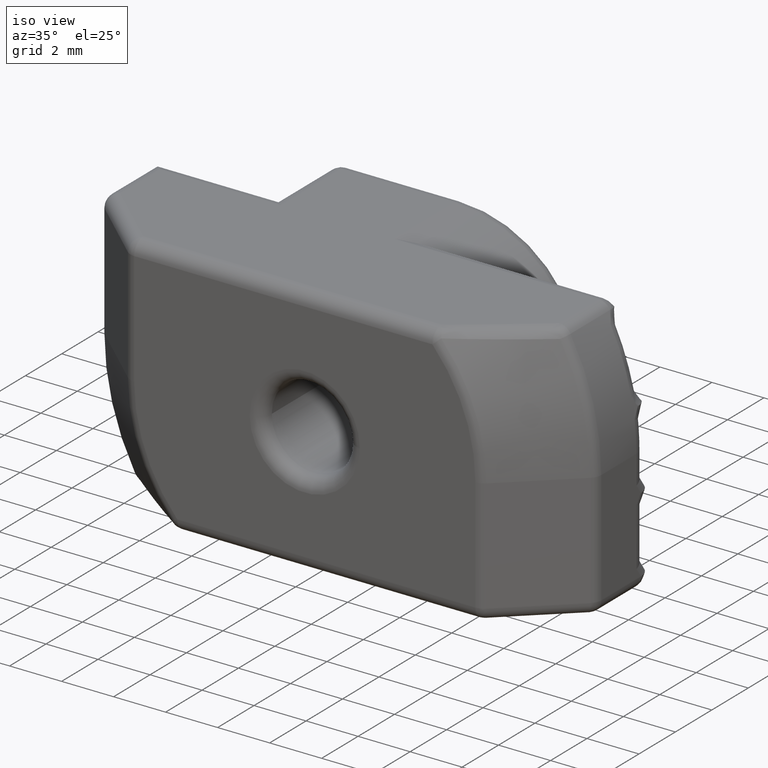
[diagram: clean part render]
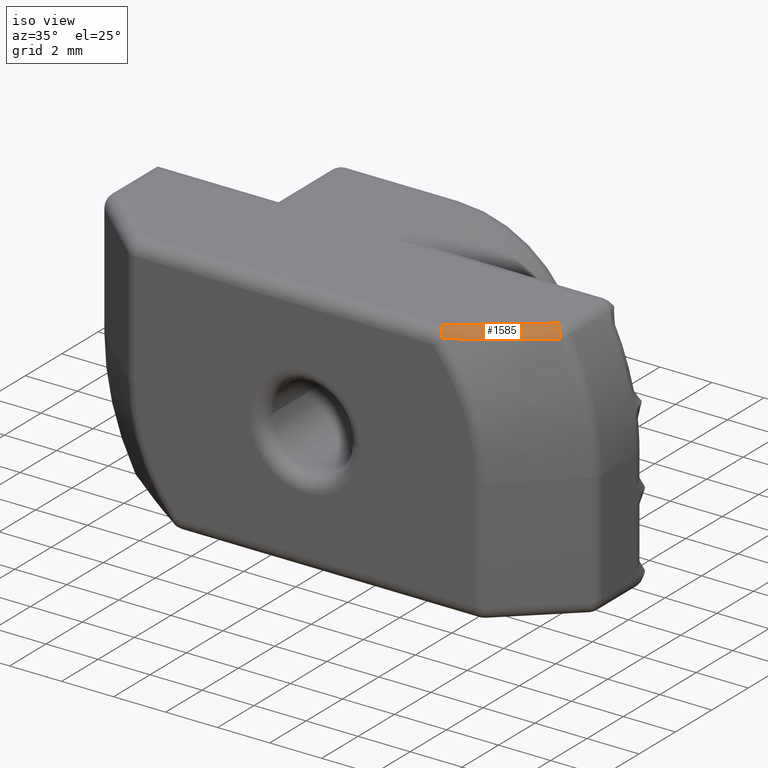
[diagram: same view with one face highlighted and labeled with its STEP entity id]
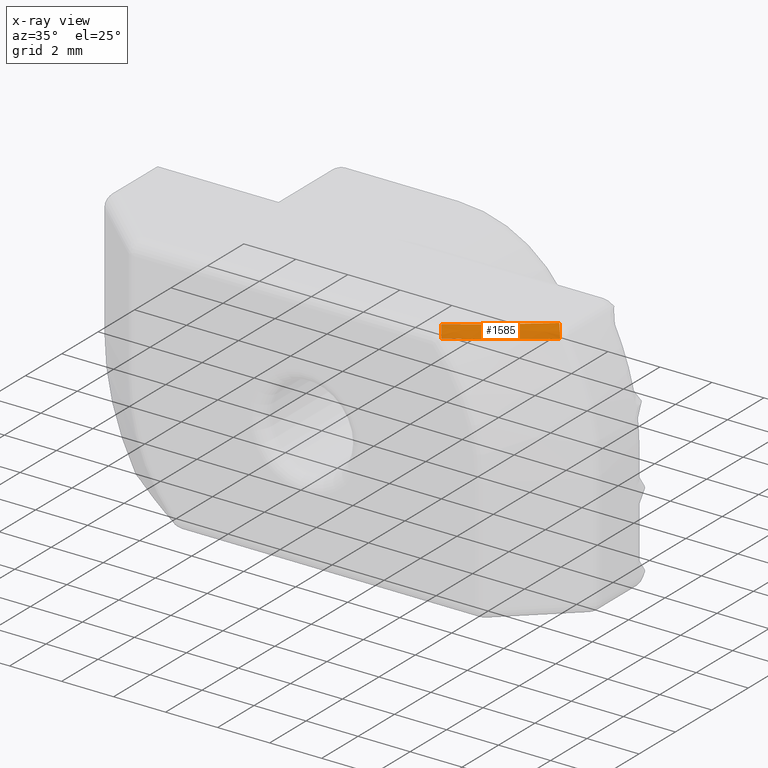
[diagram: x-ray of the same camera — body ghosted, the highlighted face saturated]
A machine part, iso view. The second image highlights one B-rep face of the part: STEP entity #1585.
The next image is the same camera in x-ray: the body ghosted, the highlighted face saturated — about 0% of this face is hidden behind the body in this view.
In plain terms, the highlighted face is a freeform B-spline surface patch.
Its self-contained STEP definition (entity closure, byte-faithful):
#40=B_SPLINE_CURVE_WITH_KNOTS('',3,(#2794,#2795,#2796,#2797),
 .UNSPECIFIED.,.F.,.F.,(4,4),(-0.560943769347797,-0.189735518197095),
 .UNSPECIFIED.);
#41=B_SPLINE_CURVE_WITH_KNOTS('',3,(#2798,#2799,#2800,#2801),
 .UNSPECIFIED.,.F.,.F.,(4,4),(0.189735518197095,0.560943769347797),
 .UNSPECIFIED.);
#59=B_SPLINE_SURFACE_WITH_KNOTS('',3,3,((#2774,#2775,#2776,#2777),(#2778,
#2779,#2780,#2781),(#2782,#2783,#2784,#2785),(#2786,#2787,#2788,#2789),
(#2790,#2791,#2792,#2793)),.UNSPECIFIED.,.F.,.F.,.F.,(4,1,4),(4,4),(0.,
0.5,1.),(0.189735518197095,0.560943769347797),.UNSPECIFIED.);
#99=CIRCLE('',#1722,0.5);
#115=CIRCLE('',#1749,0.5);
#230=FACE_OUTER_BOUND('',#339,.T.);
#339=EDGE_LOOP('',(#1193,#1194,#1195,#1196));
#714=VERTEX_POINT('',#2714);
#715=VERTEX_POINT('',#2716);
#728=VERTEX_POINT('',#2768);
#730=VERTEX_POINT('',#2771);
#878=EDGE_CURVE('',#714,#715,#99,.F.);
#901=EDGE_CURVE('',#730,#728,#115,.F.);
#903=EDGE_CURVE('',#728,#714,#40,.T.);
#904=EDGE_CURVE('',#715,#730,#41,.T.);
#1193=ORIENTED_EDGE('',*,*,#901,.T.);
#1194=ORIENTED_EDGE('',*,*,#903,.T.);
#1195=ORIENTED_EDGE('',*,*,#878,.T.);
#1196=ORIENTED_EDGE('',*,*,#904,.T.);
#1585=ADVANCED_FACE('',(#230),#59,.F.);
#1722=AXIS2_PLACEMENT_3D('',#2718,#2041,#2042);
#1749=AXIS2_PLACEMENT_3D('',#2772,#2101,#2102);
#2041=DIRECTION('center_axis',(-0.826847475411941,-0.562426219521192,-2.46038874867635E-15));
#2042=DIRECTION('ref_axis',(-2.22044604925031E-15,-1.11022302462516E-15,
1.));
#2101=DIRECTION('center_axis',(0.782449799017801,0.622713667761518,4.02954371908802E-13));
#2102=DIRECTION('ref_axis',(0.588882248556244,-0.739940073395944,0.325125183764881));
#2714=CARTESIAN_POINT('',(4.90589133745647,-5.,4.85));
#2716=CARTESIAN_POINT('',(5.15754699979898,-5.36997003669024,4.57314031356551));
#2718=CARTESIAN_POINT('Origin',(4.90589133744885,-4.9999999999724,4.35));
#2768=CARTESIAN_POINT('',(7.87892759200129,-2.77881505694011,4.85));
#2771=CARTESIAN_POINT('',(8.17336871627949,-3.14878509363804,4.51256259188238));
#2772=CARTESIAN_POINT('Origin',(7.87892759200144,-2.77881505693999,4.35));
#2774=CARTESIAN_POINT('Ctrl Pts',(5.15754699979898,-5.36997003669024,4.57314031356551));
#2775=CARTESIAN_POINT('Ctrl Pts',(6.2036429585254,-4.67412108704069,4.54709074020656));
#2776=CARTESIAN_POINT('Ctrl Pts',(7.19681552222486,-3.91924987338082,4.52787077262733));
#2777=CARTESIAN_POINT('Ctrl Pts',(8.17336871627957,-3.14878509363796,4.51256259188244));
#2778=CARTESIAN_POINT('Ctrl Pts',(5.13436733366257,-5.33589259193873,4.65578305716445));
#2779=CARTESIAN_POINT('Ctrl Pts',(6.18053386293292,-4.64325916850338,4.6364943771145));
#2780=CARTESIAN_POINT('Ctrl Pts',(7.17481394761272,-3.89085818720298,4.62191388772829));
#2781=CARTESIAN_POINT('Ctrl Pts',(8.15245372791632,-3.12250507235608,4.61025452052433));
#2782=CARTESIAN_POINT('Ctrl Pts',(5.06161123684834,-5.2289306600916,4.7974659375298));
#2783=CARTESIAN_POINT('Ctrl Pts',(6.10252404465307,-4.53841352543352,4.79177359019528));
#2784=CARTESIAN_POINT('Ctrl Pts',(7.09522843746872,-3.7879343947311,4.78741406621079));
#2785=CARTESIAN_POINT('Ctrl Pts',(8.07171791673407,-3.02105921930424,4.78382410510038));
#2786=CARTESIAN_POINT('Ctrl Pts',(4.95783100212216,-5.07635878117123,4.85));
#2787=CARTESIAN_POINT('Ctrl Pts',(5.98682325272747,-4.38231112205463,4.85005373155033));
#2788=CARTESIAN_POINT('Ctrl Pts',(6.97233879846613,-3.62889302575621,4.84995774425594));
#2789=CARTESIAN_POINT('Ctrl Pts',(7.94325662404092,-2.85964552653808,4.85));
#2790=CARTESIAN_POINT('Ctrl Pts',(4.90589133741964,-4.99999999999226,4.85));
#2791=CARTESIAN_POINT('Ctrl Pts',(5.92888942537849,-4.30415105034272,4.85));
#2792=CARTESIAN_POINT('Ctrl Pts',(6.91082613017333,-3.54927983668285,4.85));
#2793=CARTESIAN_POINT('Ctrl Pts',(7.87892759200144,-2.77881505693999,4.85));
#2794=CARTESIAN_POINT('Ctrl Pts',(7.87892759200144,-2.77881505693999,4.85));
#2795=CARTESIAN_POINT('Ctrl Pts',(6.91082613017333,-3.54927983668285,4.85));
#2796=CARTESIAN_POINT('Ctrl Pts',(5.92888942537849,-4.30415105034272,4.85));
#2797=CARTESIAN_POINT('Ctrl Pts',(4.90589133741964,-4.99999999999226,4.85));
#2798=CARTESIAN_POINT('Ctrl Pts',(5.15754699979898,-5.36997003669024,4.57314031356551));
#2799=CARTESIAN_POINT('Ctrl Pts',(6.2036429585254,-4.67412108704069,4.54709074020656));
#2800=CARTESIAN_POINT('Ctrl Pts',(7.19681552222486,-3.91924987338082,4.52787077262733));
#2801=CARTESIAN_POINT('Ctrl Pts',(8.17336871627957,-3.14878509363796,4.51256259188244));